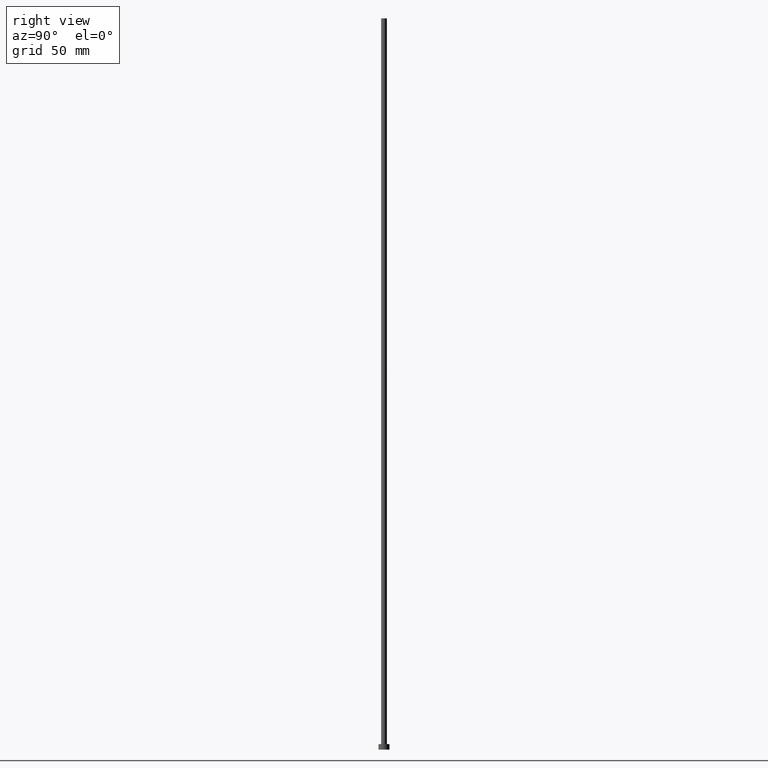
[diagram: clean part render]
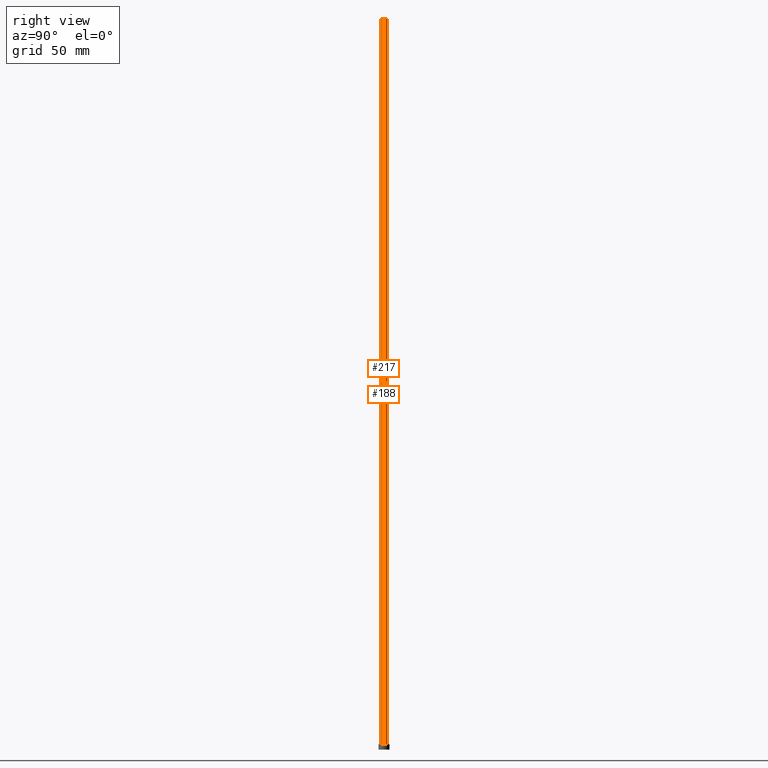
[diagram: same view with one multi-face feature highlighted, each face labeled with its STEP entity id]
A machine part, right view. The highlighted faces form ONE feature: a constant-radius fillet chain: 2 tangent blend faces with common blend radius 1.6 mm. The faces share edges in the B-rep.
Their STEP definitions:
[1] entity #217 (Cylinder):
#5 = VERTEX_POINT ( 'NONE', #35 ) ;
#7 = AXIS2_PLACEMENT_3D ( 'NONE', #112, #246, #224 ) ;
#8 = ORIENTED_EDGE ( 'NONE', *, *, #85, .F. ) ;
#14 = DIRECTION ( 'NONE',  ( 0.000000000000000000, 0.000000000000000000, 1.000000000000000000 ) ) ;
#23 = VERTEX_POINT ( 'NONE', #180 ) ;
#35 = CARTESIAN_POINT ( 'NONE',  ( 1.600000000000000089, 1.959434878635765230E-16, 400.0000000000000000 ) ) ;
#48 = CARTESIAN_POINT ( 'NONE',  ( 0.000000000000000000, 0.000000000000000000, 3.000000000000000000 ) ) ;
#50 = DIRECTION ( 'NONE',  ( -0.000000000000000000, -0.000000000000000000, -1.000000000000000000 ) ) ;
#66 = ORIENTED_EDGE ( 'NONE', *, *, #130, .T. ) ;
#67 = DIRECTION ( 'NONE',  ( -0.000000000000000000, -0.000000000000000000, -1.000000000000000000 ) ) ;
#71 = CARTESIAN_POINT ( 'NONE',  ( 1.600000000000000089, 1.959434878635765230E-16, 400.0000000000000000 ) ) ;
#79 = CARTESIAN_POINT ( 'NONE',  ( 0.000000000000000000, 0.000000000000000000, 400.0000000000000000 ) ) ;
#85 = EDGE_CURVE ( 'NONE', #137, #5, #230, .T. ) ;
#99 = CYLINDRICAL_SURFACE ( 'NONE', #7, 1.600000000000000089 ) ;
#105 = LINE ( 'NONE', #163, #125 ) ;
#111 = CIRCLE ( 'NONE', #150, 1.600000000000000089 ) ;
#112 = CARTESIAN_POINT ( 'NONE',  ( 0.000000000000000000, 0.000000000000000000, 400.0000000000000000 ) ) ;
#117 = CARTESIAN_POINT ( 'NONE',  ( -1.600000000000000089, 0.000000000000000000, 400.0000000000000000 ) ) ;
#120 = ORIENTED_EDGE ( 'NONE', *, *, #126, .T. ) ;
#125 = VECTOR ( 'NONE', #67, 1000.000000000000000 ) ;
#126 = EDGE_CURVE ( 'NONE', #137, #23, #105, .T. ) ;
#127 = CARTESIAN_POINT ( 'NONE',  ( 1.600000000000000089, 1.959434878635765230E-16, 3.000000000000000000 ) ) ;
#130 = EDGE_CURVE ( 'NONE', #23, #165, #111, .T. ) ;
#136 = VECTOR ( 'NONE', #50, 1000.000000000000000 ) ;
#137 = VERTEX_POINT ( 'NONE', #117 ) ;
#150 = AXIS2_PLACEMENT_3D ( 'NONE', #48, #14, #215 ) ;
#160 = EDGE_CURVE ( 'NONE', #5, #165, #212, .T. ) ;
#162 = DIRECTION ( 'NONE',  ( 0.000000000000000000, 0.000000000000000000, 1.000000000000000000 ) ) ;
#163 = CARTESIAN_POINT ( 'NONE',  ( -1.600000000000000089, 0.000000000000000000, 400.0000000000000000 ) ) ;
#165 = VERTEX_POINT ( 'NONE', #127 ) ;
#180 = CARTESIAN_POINT ( 'NONE',  ( -1.600000000000000089, 0.000000000000000000, 3.000000000000000000 ) ) ;
#182 = DIRECTION ( 'NONE',  ( 1.000000000000000000, 0.000000000000000000, 0.000000000000000000 ) ) ;
#197 = AXIS2_PLACEMENT_3D ( 'NONE', #79, #162, #182 ) ;
#199 = EDGE_LOOP ( 'NONE', ( #202, #8, #120, #66 ) ) ;
#202 = ORIENTED_EDGE ( 'NONE', *, *, #160, .F. ) ;
#212 = LINE ( 'NONE', #71, #136 ) ;
#215 = DIRECTION ( 'NONE',  ( 1.000000000000000000, 0.000000000000000000, 0.000000000000000000 ) ) ;
#217 = ADVANCED_FACE ( 'NONE', ( #245 ), #99, .T. ) ;
#224 = DIRECTION ( 'NONE',  ( -1.000000000000000000, 0.000000000000000000, 0.000000000000000000 ) ) ;
#230 = CIRCLE ( 'NONE', #197, 1.600000000000000089 ) ;
#245 = FACE_OUTER_BOUND ( 'NONE', #199, .T. ) ;
#246 = DIRECTION ( 'NONE',  ( -0.000000000000000000, -0.000000000000000000, -1.000000000000000000 ) ) ;
[2] entity #188 (Cylinder):
#2 = CIRCLE ( 'NONE', #216, 1.600000000000000089 ) ;
#5 = VERTEX_POINT ( 'NONE', #35 ) ;
#12 = DIRECTION ( 'NONE',  ( 1.000000000000000000, 0.000000000000000000, 0.000000000000000000 ) ) ;
#17 = CARTESIAN_POINT ( 'NONE',  ( 0.000000000000000000, 0.000000000000000000, 3.000000000000000000 ) ) ;
#23 = VERTEX_POINT ( 'NONE', #180 ) ;
#35 = CARTESIAN_POINT ( 'NONE',  ( 1.600000000000000089, 1.959434878635765230E-16, 400.0000000000000000 ) ) ;
#36 = CARTESIAN_POINT ( 'NONE',  ( 0.000000000000000000, 0.000000000000000000, 400.0000000000000000 ) ) ;
#40 = ORIENTED_EDGE ( 'NONE', *, *, #87, .F. ) ;
#49 = AXIS2_PLACEMENT_3D ( 'NONE', #17, #219, #107 ) ;
#50 = DIRECTION ( 'NONE',  ( -0.000000000000000000, -0.000000000000000000, -1.000000000000000000 ) ) ;
#52 = FACE_OUTER_BOUND ( 'NONE', #207, .T. ) ;
#67 = DIRECTION ( 'NONE',  ( -0.000000000000000000, -0.000000000000000000, -1.000000000000000000 ) ) ;
#71 = CARTESIAN_POINT ( 'NONE',  ( 1.600000000000000089, 1.959434878635765230E-16, 400.0000000000000000 ) ) ;
#77 = ORIENTED_EDGE ( 'NONE', *, *, #168, .T. ) ;
#87 = EDGE_CURVE ( 'NONE', #5, #137, #2, .T. ) ;
#105 = LINE ( 'NONE', #163, #125 ) ;
#107 = DIRECTION ( 'NONE',  ( 1.000000000000000000, 0.000000000000000000, 0.000000000000000000 ) ) ;
#108 = DIRECTION ( 'NONE',  ( -0.000000000000000000, -0.000000000000000000, -1.000000000000000000 ) ) ;
#117 = CARTESIAN_POINT ( 'NONE',  ( -1.600000000000000089, 0.000000000000000000, 400.0000000000000000 ) ) ;
#125 = VECTOR ( 'NONE', #67, 1000.000000000000000 ) ;
#126 = EDGE_CURVE ( 'NONE', #137, #23, #105, .T. ) ;
#127 = CARTESIAN_POINT ( 'NONE',  ( 1.600000000000000089, 1.959434878635765230E-16, 3.000000000000000000 ) ) ;
#135 = ORIENTED_EDGE ( 'NONE', *, *, #126, .F. ) ;
#136 = VECTOR ( 'NONE', #50, 1000.000000000000000 ) ;
#137 = VERTEX_POINT ( 'NONE', #117 ) ;
#140 = CIRCLE ( 'NONE', #49, 1.600000000000000089 ) ;
#160 = EDGE_CURVE ( 'NONE', #5, #165, #212, .T. ) ;
#163 = CARTESIAN_POINT ( 'NONE',  ( -1.600000000000000089, 0.000000000000000000, 400.0000000000000000 ) ) ;
#165 = VERTEX_POINT ( 'NONE', #127 ) ;
#168 = EDGE_CURVE ( 'NONE', #165, #23, #140, .T. ) ;
#180 = CARTESIAN_POINT ( 'NONE',  ( -1.600000000000000089, 0.000000000000000000, 3.000000000000000000 ) ) ;
#188 = ADVANCED_FACE ( 'NONE', ( #52 ), #220, .T. ) ;
#189 = AXIS2_PLACEMENT_3D ( 'NONE', #36, #108, #192 ) ;
#192 = DIRECTION ( 'NONE',  ( -1.000000000000000000, 0.000000000000000000, 0.000000000000000000 ) ) ;
#207 = EDGE_LOOP ( 'NONE', ( #40, #247, #77, #135 ) ) ;
#210 = DIRECTION ( 'NONE',  ( 0.000000000000000000, 0.000000000000000000, 1.000000000000000000 ) ) ;
#212 = LINE ( 'NONE', #71, #136 ) ;
#216 = AXIS2_PLACEMENT_3D ( 'NONE', #233, #210, #12 ) ;
#219 = DIRECTION ( 'NONE',  ( 0.000000000000000000, 0.000000000000000000, 1.000000000000000000 ) ) ;
#220 = CYLINDRICAL_SURFACE ( 'NONE', #189, 1.600000000000000089 ) ;
#233 = CARTESIAN_POINT ( 'NONE',  ( 0.000000000000000000, 0.000000000000000000, 400.0000000000000000 ) ) ;
#247 = ORIENTED_EDGE ( 'NONE', *, *, #160, .T. ) ;